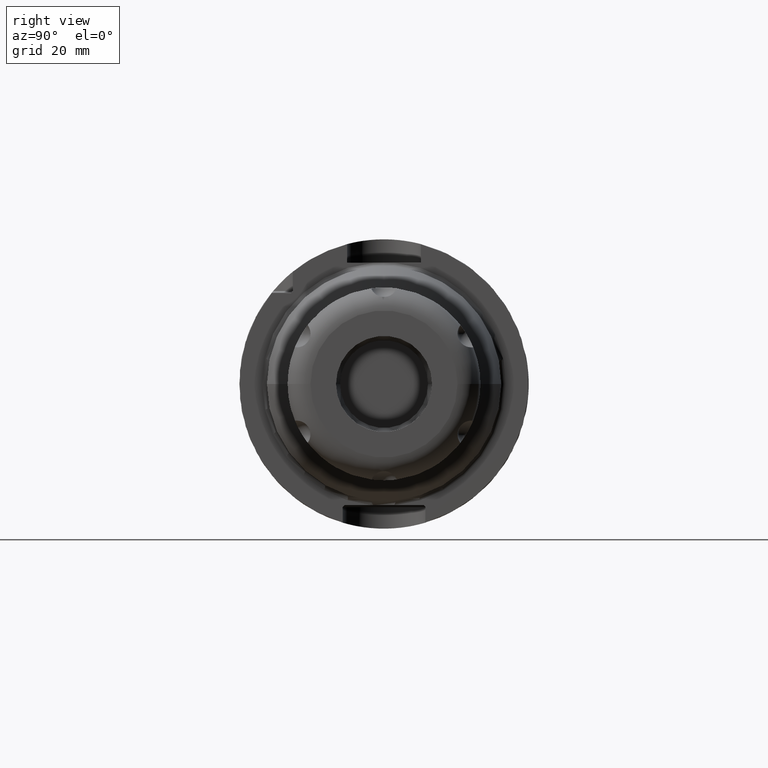
[diagram: clean part render]
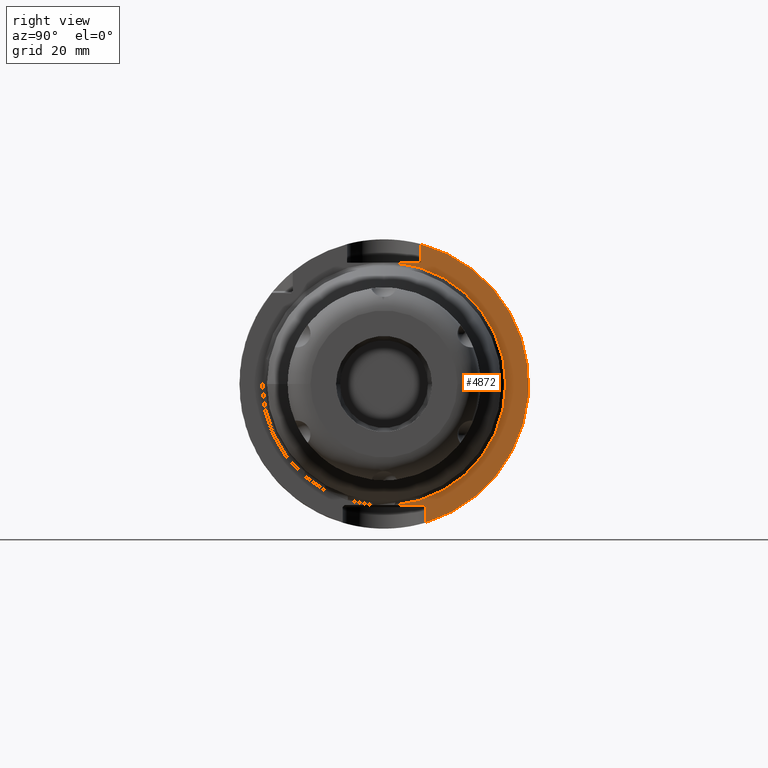
[diagram: same view with one face highlighted and labeled with its STEP entity id]
A machine part, right view. The second image highlights one B-rep face of the part: STEP entity #4872.
In plain terms, the highlighted planar face has unit normal (1, 0, 0).
Its self-contained STEP definition (entity closure, byte-faithful):
#1343=DIRECTION('',(0.E0,7.071067811865E-1,-7.071067811866E-1));
#1344=VECTOR('',#1343,5.656854249492E-1);
#1345=CARTESIAN_POINT('',(2.6E1,8.6175E0,-2.64E1));
#1346=LINE('',#1345,#1344);
#1516=DIRECTION('',(0.E0,9.999999999995E-1,-1.041534410943E-6));
#1517=VECTOR('',#1516,5.717546629034E0);
#1518=CARTESIAN_POINT('',(2.6E1,2.299953370969E0,2.640000595502E1));
#1519=LINE('',#1518,#1517);
#1520=DIRECTION('',(0.E0,0.E0,-1.E0));
#1521=VECTOR('',#1520,4.062594993697E0);
#1522=CARTESIAN_POINT('',(2.6E1,8.0175E0,3.046259499370E1));
#1523=LINE('',#1522,#1521);
#1524=DIRECTION('',(0.E0,0.E0,1.E0));
#1525=VECTOR('',#1524,3.381694679888E0);
#1526=CARTESIAN_POINT('',(2.6E1,9.0175E0,-3.018169467989E1));
#1527=LINE('',#1526,#1525);
#1528=DIRECTION('',(0.E0,-9.999999999996E-1,-9.282797228149E-7));
#1529=VECTOR('',#1528,6.317545981326E0);
#1530=CARTESIAN_POINT('',(2.6E1,8.6175E0,-2.64E1));
#1531=LINE('',#1530,#1529);
#1556=CARTESIAN_POINT('',(2.6E1,0.E0,0.E0));
#1557=DIRECTION('',(-1.E0,0.E0,0.E0));
#1558=DIRECTION('',(0.E0,8.679489399846E-2,9.962262024138E-1));
#1559=AXIS2_PLACEMENT_3D('',#1556,#1557,#1558);
#1856=CARTESIAN_POINT('',(2.6E1,0.E0,0.E0));
#1857=DIRECTION('',(1.E0,0.E0,0.E0));
#1858=DIRECTION('',(0.E0,2.862698412698E-1,-9.581490374568E-1));
#1859=AXIS2_PLACEMENT_3D('',#1856,#1857,#1858);
#3088=CARTESIAN_POINT('',(2.6E1,8.6175E0,-2.64E1));
#3089=CARTESIAN_POINT('',(2.6E1,9.0175E0,-2.68E1));
#3090=VERTEX_POINT('',#3088);
#3091=VERTEX_POINT('',#3089);
#3132=CARTESIAN_POINT('',(2.6E1,8.0175E0,2.64E1));
#3134=VERTEX_POINT('',#3132);
#3192=CARTESIAN_POINT('',(2.6E1,9.0175E0,-3.018169467989E1));
#3193=CARTESIAN_POINT('',(2.6E1,8.0175E0,3.046259499370E1));
#3194=VERTEX_POINT('',#3192);
#3195=VERTEX_POINT('',#3193);
#3287=CARTESIAN_POINT('',(2.6E1,2.299953370969E0,2.640000595502E1));
#3288=VERTEX_POINT('',#3287);
#3289=CARTESIAN_POINT('',(2.6E1,2.299954018677E0,-2.640000586445E1));
#3290=VERTEX_POINT('',#3289);
#4854=CARTESIAN_POINT('',(2.6E1,0.E0,0.E0));
#4855=DIRECTION('',(1.E0,0.E0,0.E0));
#4856=DIRECTION('',(0.E0,-1.E0,0.E0));
#4857=AXIS2_PLACEMENT_3D('',#4854,#4855,#4856);
#4858=PLANE('',#4857);
#4860=ORIENTED_EDGE('',*,*,#4859,.F.);
#4862=ORIENTED_EDGE('',*,*,#4861,.T.);
#4864=ORIENTED_EDGE('',*,*,#4863,.F.);
#4866=ORIENTED_EDGE('',*,*,#4865,.F.);
#4867=ORIENTED_EDGE('',*,*,#4695,.T.);
#4868=ORIENTED_EDGE('',*,*,#4736,.F.);
#4869=ORIENTED_EDGE('',*,*,#4801,.T.);
#4870=EDGE_LOOP('',(#4860,#4862,#4864,#4866,#4867,#4868,#4869));
#4871=FACE_OUTER_BOUND('',#4870,.F.);
#4872=ADVANCED_FACE('',(#4871),#4858,.T.);
#1560=CIRCLE('',#1559,2.65E1);
#1860=CIRCLE('',#1859,3.15E1);
#4695=EDGE_CURVE('',#3194,#3091,#1527,.T.);
#4736=EDGE_CURVE('',#3090,#3091,#1346,.T.);
#4801=EDGE_CURVE('',#3090,#3290,#1531,.T.);
#4859=EDGE_CURVE('',#3288,#3290,#1560,.T.);
#4861=EDGE_CURVE('',#3288,#3134,#1519,.T.);
#4863=EDGE_CURVE('',#3195,#3134,#1523,.T.);
#4865=EDGE_CURVE('',#3194,#3195,#1860,.T.);